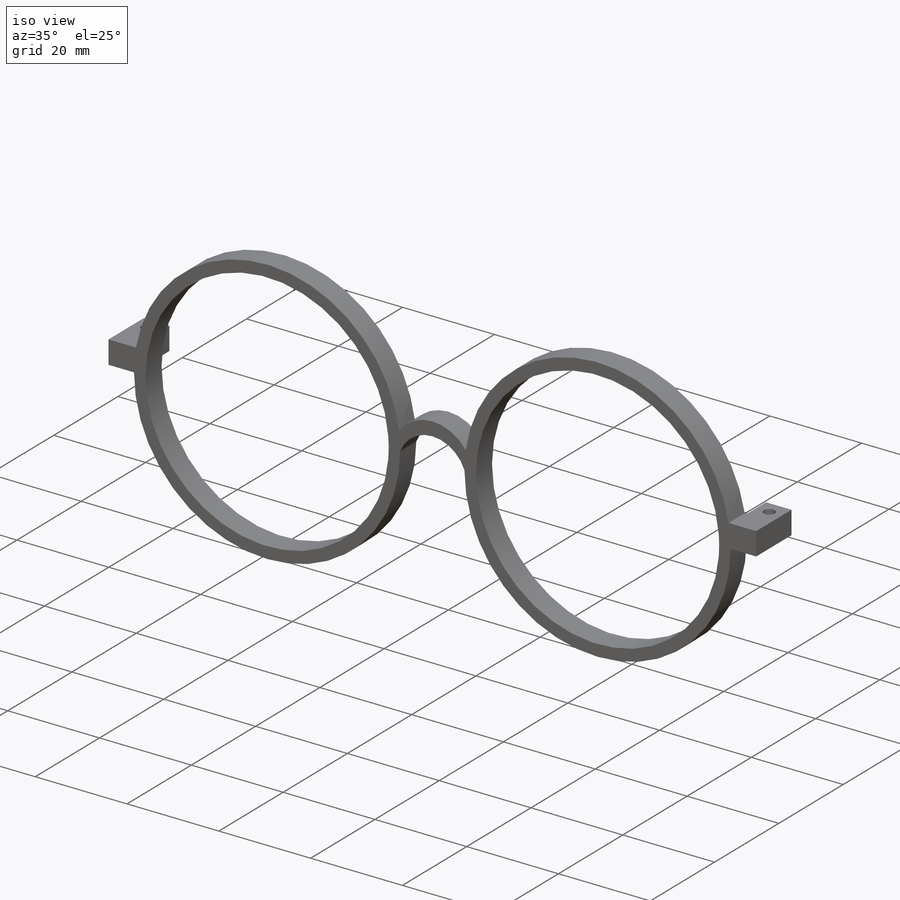
[diagram: iso view]
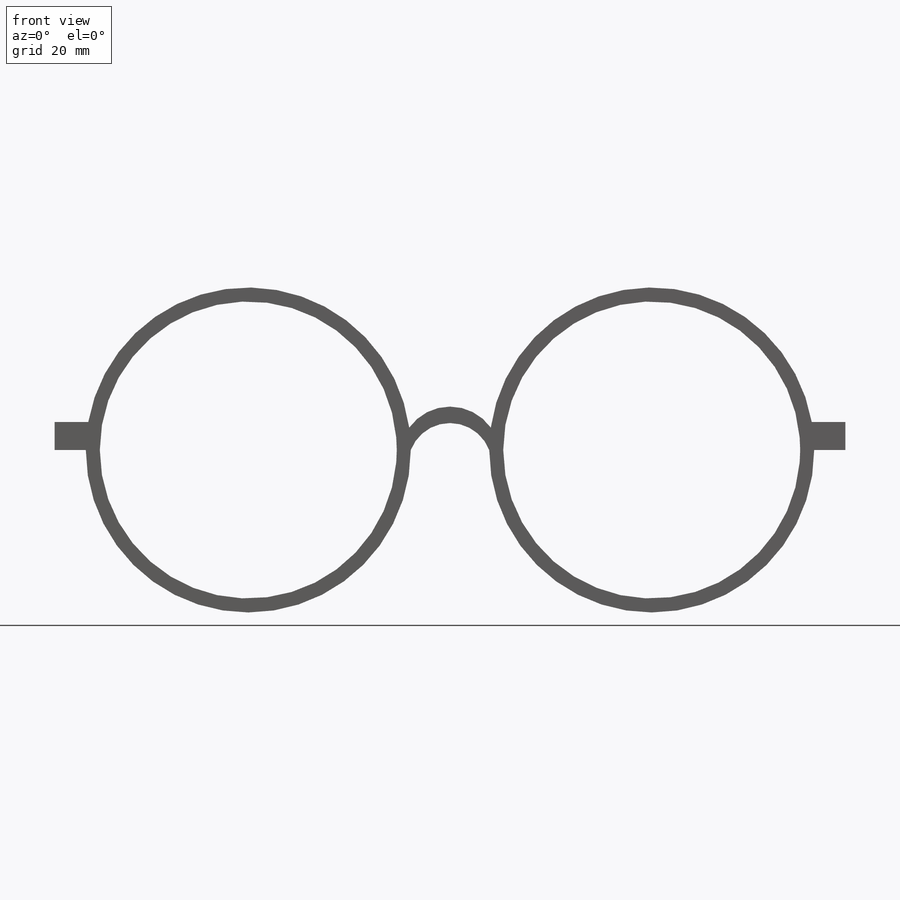
[diagram: front view]
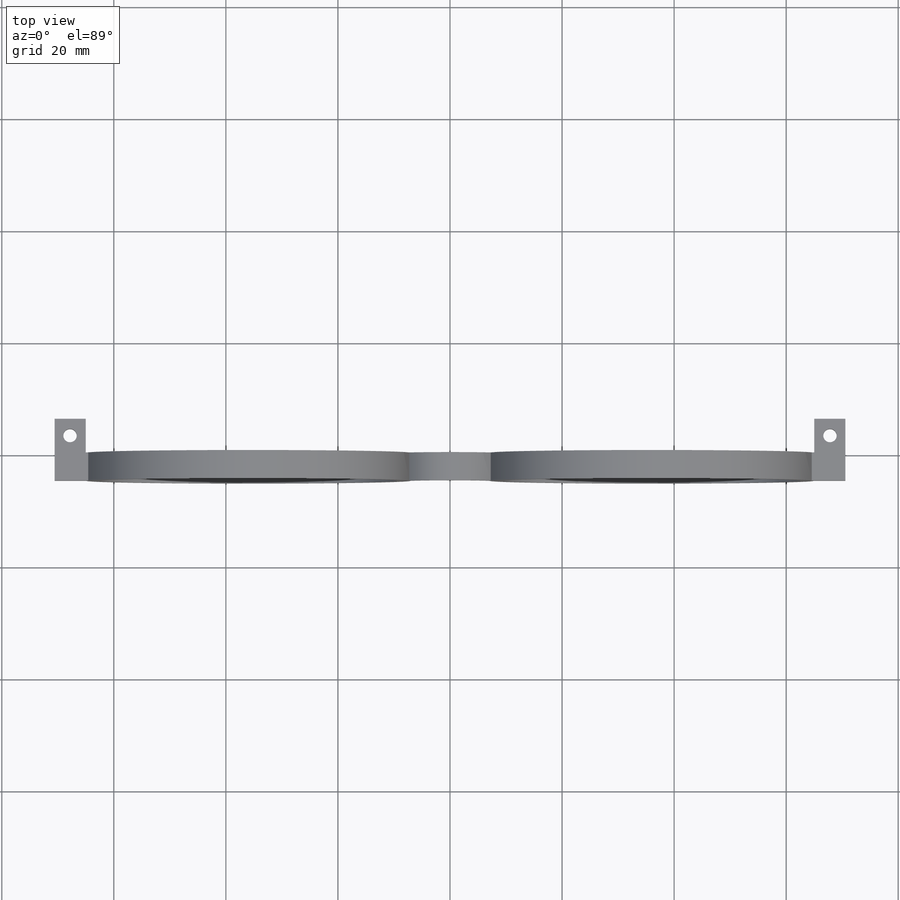
[diagram: top view]
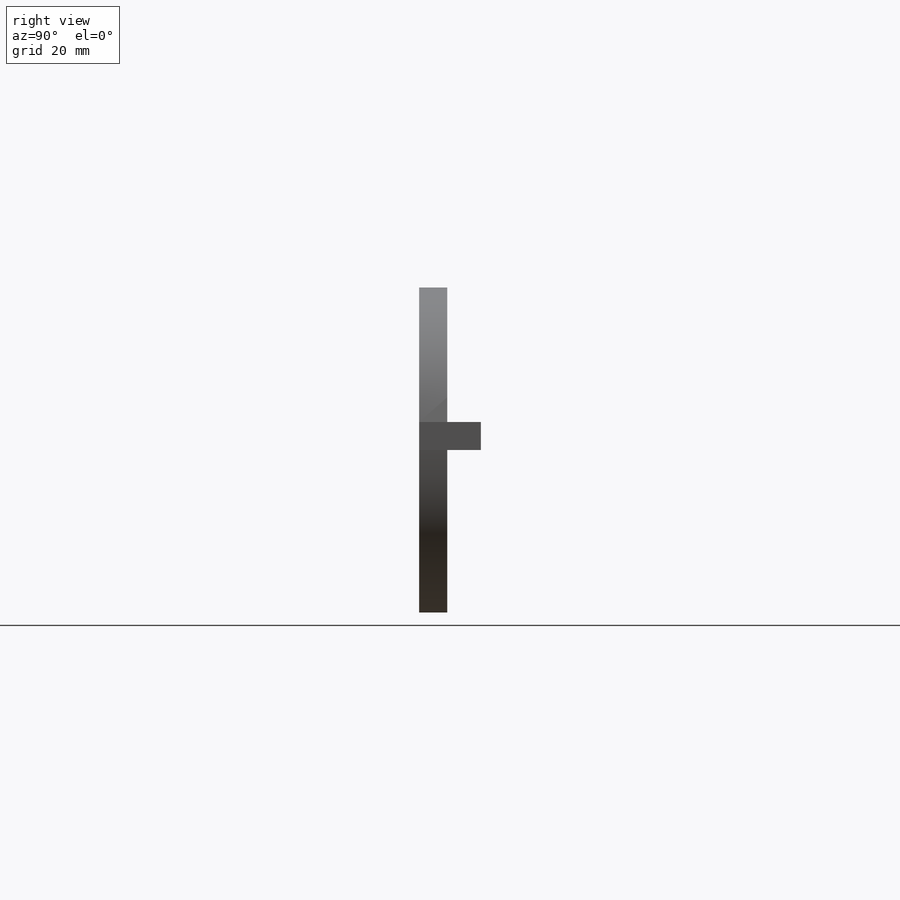
[diagram: right view]
SOLIDWORKS PART (.sldprt)
format: sldprt  version: not decoded by parser v0  size: 258,048 bytes
history: native  units: mm
features: sketch x4, plane x3, extrude x2, material x1, hole x1 (+10 scaffold rows collapsed)
feature tree (21):
  scaffold x10  (default folders/planes/origin — collapsed)
  material  "Material <nicht festgelegt>"
  plane  "Ebene vorne"
  plane  "Ebene oben"
  plane  "Ebene rechts"
  sketch  "Skizze1"  dims[c1.D1=58.0mm c1.D2=58.0mm c1.D5=7.5mm c1.D6=53.0mm c1.D7=53.0mm c1.D14=7.5mm c1.D3=36.0mm c1.D4=36.0mm c1.D8=4.0mm c1.D9=4.0mm c1.D10=5.0mm c1.D11=5.0mm c1.D12=6.0mm c1.D13=6.0mm c2.D14=~0.337334mm]
  extrude  "Aufsatz-Linear austragen1"  Depth=5mm
  sketch  "Skizze2"
  extrude  "Aufsatz-Linear austragen2"  Depth=6mm
  hole  "Durchgangsloch für M21"  Diameter=2.4mm Depth=34mm
  sketch  "Skizze4"  dims[D1=3.0mm D2=2.75mm D3=3.0mm D4=2.75mm]
  sketch  "Skizze3"  dims[hole-wizard template sketch: 59 standard entries collapsed; hole parameters kept: c18.Bohrerdurchmesser=2.4mm c18.Bohrungstiefe=34.0mm]
decode coverage: 6 of 7 modeling features carry decoded parameters
note: ~ marks probable driven/reference dimensions
note: suppression state not decoded; provenance and decode notes live in map.json
